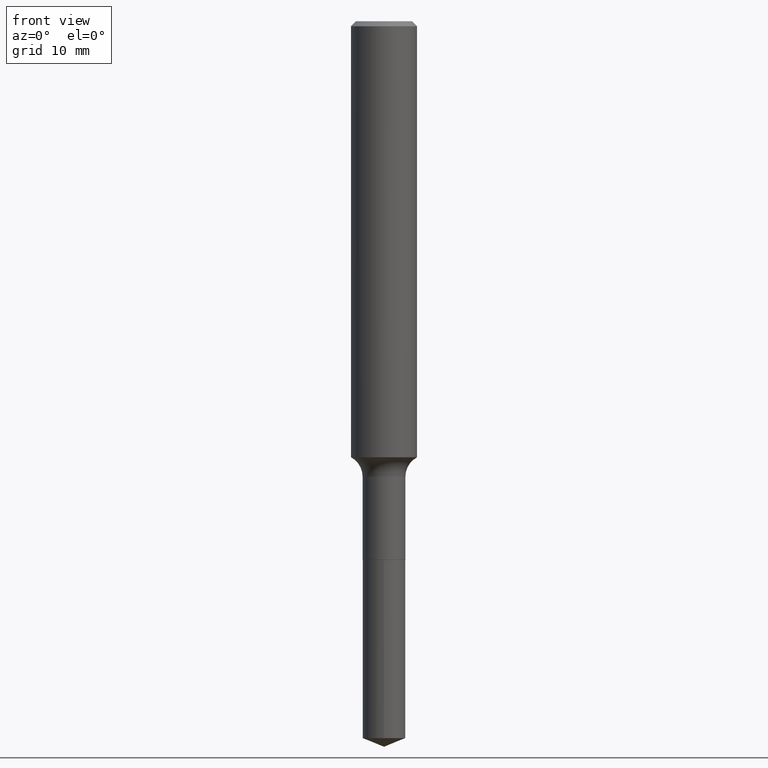
[diagram: clean part render]
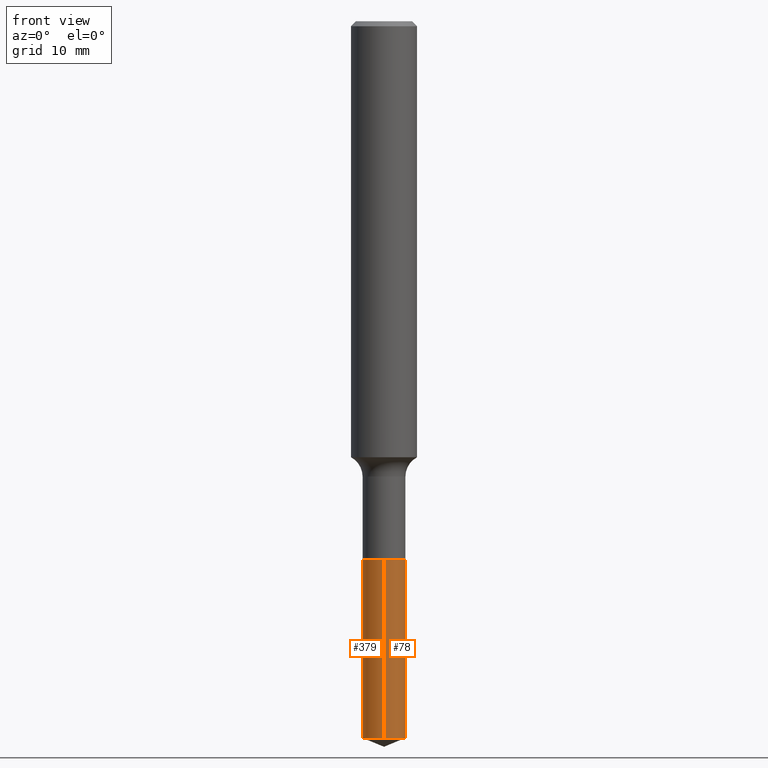
[diagram: same view with one multi-face feature highlighted, each face labeled with its STEP entity id]
A machine part, front view. The highlighted faces form ONE feature: a constant-radius fillet chain: 2 tangent blend faces with common blend radius 1.9495 mm. The faces share edges in the B-rep.
Their STEP definitions:
[1] entity #379 (Cylinder):
#24 = VERTEX_POINT ( 'NONE', #164 ) ;
#36 = EDGE_CURVE ( 'NONE', #24, #48, #313, .T. ) ;
#46 = CARTESIAN_POINT ( 'NONE',  ( -5.359423855123736897E-16, -0.07675000000000672951, -1.929099999999999593 ) ) ;
#48 = VERTEX_POINT ( 'NONE', #426 ) ;
#49 = AXIS2_PLACEMENT_3D ( 'NONE', #201, #87, #89 ) ;
#87 = DIRECTION ( 'NONE',  ( -2.428961463615744039E-29, 3.515120792942106906E-15, 1.000000000000000000 ) ) ;
#89 = DIRECTION ( 'NONE',  ( -6.982962677686265133E-15, -1.000000000000000000, 0.000000000000000000 ) ) ;
#99 = VERTEX_POINT ( 'NONE', #46 ) ;
#106 = EDGE_CURVE ( 'NONE', #449, #99, #261, .T. ) ;
#107 = CARTESIAN_POINT ( 'NONE',  ( 5.453415496959241170E-16, 0.07674999999999326805, -1.929100000000000259 ) ) ;
#117 = ORIENTED_EDGE ( 'NONE', *, *, #106, .F. ) ;
#129 = EDGE_CURVE ( 'NONE', #48, #99, #361, .T. ) ;
#142 = CARTESIAN_POINT ( 'NONE',  ( 4.717553874011746679E-29, -6.735416650762311704E-15, -1.929099999999999815 ) ) ;
#147 = CARTESIAN_POINT ( 'NONE',  ( 5.453415496959397956E-16, 0.07674999999999326805, -1.929100000000000259 ) ) ;
#161 = EDGE_CURVE ( 'NONE', #24, #449, #481, .T. ) ;
#164 = CARTESIAN_POINT ( 'NONE',  ( 5.453415496959396970E-16, 0.07674999999999104761, -2.567390987167151639 ) ) ;
#186 = ORIENTED_EDGE ( 'NONE', *, *, #129, .T. ) ;
#187 = DIRECTION ( 'NONE',  ( -2.428961463615744039E-29, 3.515120792942106906E-15, 1.000000000000000000 ) ) ;
#201 = CARTESIAN_POINT ( 'NONE',  ( 6.267938084414010442E-29, -8.979086571701111052E-15, -2.567390987167151639 ) ) ;
#208 = VECTOR ( 'NONE', #435, 39.37007874015748143 ) ;
#222 = CARTESIAN_POINT ( 'NONE',  ( 4.717553874011746679E-29, -6.735416650762311704E-15, -1.929099999999999815 ) ) ;
#261 = CIRCLE ( 'NONE', #415, 0.07674999999999999878 ) ;
#304 = FACE_OUTER_BOUND ( 'NONE', #343, .T. ) ;
#313 = CIRCLE ( 'NONE', #49, 0.07675000000000002653 ) ;
#329 = DIRECTION ( 'NONE',  ( -6.982962677686265922E-15, -1.000000000000000000, 3.559411066663535475E-15 ) ) ;
#336 = DIRECTION ( 'NONE',  ( -2.428961463615744319E-29, 3.515120792942106906E-15, 1.000000000000000000 ) ) ;
#343 = EDGE_LOOP ( 'NONE', ( #345, #372, #186, #117 ) ) ;
#345 = ORIENTED_EDGE ( 'NONE', *, *, #161, .F. ) ;
#361 = LINE ( 'NONE', #405, #422 ) ;
#372 = ORIENTED_EDGE ( 'NONE', *, *, #36, .T. ) ;
#379 = ADVANCED_FACE ( 'NONE', ( #304 ), #418, .T. ) ;
#404 = AXIS2_PLACEMENT_3D ( 'NONE', #222, #187, #487 ) ;
#405 = CARTESIAN_POINT ( 'NONE',  ( -5.359423855123737883E-16, -0.07675000000000674338, -1.929099999999999593 ) ) ;
#407 = DIRECTION ( 'NONE',  ( -2.428961463615744039E-29, 3.515120792942106906E-15, 1.000000000000000000 ) ) ;
#415 = AXIS2_PLACEMENT_3D ( 'NONE', #142, #407, #329 ) ;
#418 = CYLINDRICAL_SURFACE ( 'NONE', #404, 0.07675000000000001266 ) ;
#422 = VECTOR ( 'NONE', #336, 39.37007874015748143 ) ;
#426 = CARTESIAN_POINT ( 'NONE',  ( -5.359423855123585041E-16, -0.07675000000000901934, -2.567390987167151639 ) ) ;
#435 = DIRECTION ( 'NONE',  ( -2.428961463615744319E-29, 3.515120792942106906E-15, 1.000000000000000000 ) ) ;
#449 = VERTEX_POINT ( 'NONE', #147 ) ;
#481 = LINE ( 'NONE', #107, #208 ) ;
#487 = DIRECTION ( 'NONE',  ( -6.982962677686265133E-15, -1.000000000000000000, 3.559411066663534686E-15 ) ) ;
[2] entity #78 (Cylinder):
#6 = DIRECTION ( 'NONE',  ( -6.982962677686265133E-15, -1.000000000000000000, 0.000000000000000000 ) ) ;
#10 = CYLINDRICAL_SURFACE ( 'NONE', #41, 0.07675000000000001266 ) ;
#24 = VERTEX_POINT ( 'NONE', #164 ) ;
#32 = ORIENTED_EDGE ( 'NONE', *, *, #52, .T. ) ;
#41 = AXIS2_PLACEMENT_3D ( 'NONE', #433, #283, #162 ) ;
#46 = CARTESIAN_POINT ( 'NONE',  ( -5.359423855123736897E-16, -0.07675000000000672951, -1.929099999999999593 ) ) ;
#48 = VERTEX_POINT ( 'NONE', #426 ) ;
#52 = EDGE_CURVE ( 'NONE', #48, #24, #490, .T. ) ;
#67 = CARTESIAN_POINT ( 'NONE',  ( 4.717553874011746679E-29, -6.735416650762311704E-15, -1.929099999999999815 ) ) ;
#78 = ADVANCED_FACE ( 'NONE', ( #158 ), #10, .T. ) ;
#82 = CIRCLE ( 'NONE', #451, 0.07674999999999999878 ) ;
#99 = VERTEX_POINT ( 'NONE', #46 ) ;
#100 = DIRECTION ( 'NONE',  ( -2.428961463615744039E-29, 3.515120792942106906E-15, 1.000000000000000000 ) ) ;
#105 = ORIENTED_EDGE ( 'NONE', *, *, #256, .F. ) ;
#107 = CARTESIAN_POINT ( 'NONE',  ( 5.453415496959241170E-16, 0.07674999999999326805, -1.929100000000000259 ) ) ;
#129 = EDGE_CURVE ( 'NONE', #48, #99, #361, .T. ) ;
#147 = CARTESIAN_POINT ( 'NONE',  ( 5.453415496959397956E-16, 0.07674999999999326805, -1.929100000000000259 ) ) ;
#158 = FACE_OUTER_BOUND ( 'NONE', #368, .T. ) ;
#161 = EDGE_CURVE ( 'NONE', #24, #449, #481, .T. ) ;
#162 = DIRECTION ( 'NONE',  ( -6.982962677686265133E-15, -1.000000000000000000, 3.559411066663534686E-15 ) ) ;
#164 = CARTESIAN_POINT ( 'NONE',  ( 5.453415496959396970E-16, 0.07674999999999104761, -2.567390987167151639 ) ) ;
#199 = ORIENTED_EDGE ( 'NONE', *, *, #129, .F. ) ;
#208 = VECTOR ( 'NONE', #435, 39.37007874015748143 ) ;
#255 = DIRECTION ( 'NONE',  ( -6.982962677686265922E-15, -1.000000000000000000, 3.559411066663535475E-15 ) ) ;
#256 = EDGE_CURVE ( 'NONE', #99, #449, #82, .T. ) ;
#283 = DIRECTION ( 'NONE',  ( -2.428961463615744039E-29, 3.515120792942106906E-15, 1.000000000000000000 ) ) ;
#287 = CARTESIAN_POINT ( 'NONE',  ( 6.267938084414010442E-29, -8.979086571701111052E-15, -2.567390987167151639 ) ) ;
#318 = DIRECTION ( 'NONE',  ( -2.428961463615744039E-29, 3.515120792942106906E-15, 1.000000000000000000 ) ) ;
#335 = ORIENTED_EDGE ( 'NONE', *, *, #161, .T. ) ;
#336 = DIRECTION ( 'NONE',  ( -2.428961463615744319E-29, 3.515120792942106906E-15, 1.000000000000000000 ) ) ;
#361 = LINE ( 'NONE', #405, #422 ) ;
#368 = EDGE_LOOP ( 'NONE', ( #32, #335, #105, #199 ) ) ;
#383 = AXIS2_PLACEMENT_3D ( 'NONE', #287, #318, #6 ) ;
#405 = CARTESIAN_POINT ( 'NONE',  ( -5.359423855123737883E-16, -0.07675000000000674338, -1.929099999999999593 ) ) ;
#422 = VECTOR ( 'NONE', #336, 39.37007874015748143 ) ;
#426 = CARTESIAN_POINT ( 'NONE',  ( -5.359423855123585041E-16, -0.07675000000000901934, -2.567390987167151639 ) ) ;
#433 = CARTESIAN_POINT ( 'NONE',  ( 4.717553874011746679E-29, -6.735416650762311704E-15, -1.929099999999999815 ) ) ;
#435 = DIRECTION ( 'NONE',  ( -2.428961463615744319E-29, 3.515120792942106906E-15, 1.000000000000000000 ) ) ;
#449 = VERTEX_POINT ( 'NONE', #147 ) ;
#451 = AXIS2_PLACEMENT_3D ( 'NONE', #67, #100, #255 ) ;
#481 = LINE ( 'NONE', #107, #208 ) ;
#490 = CIRCLE ( 'NONE', #383, 0.07675000000000002653 ) ;